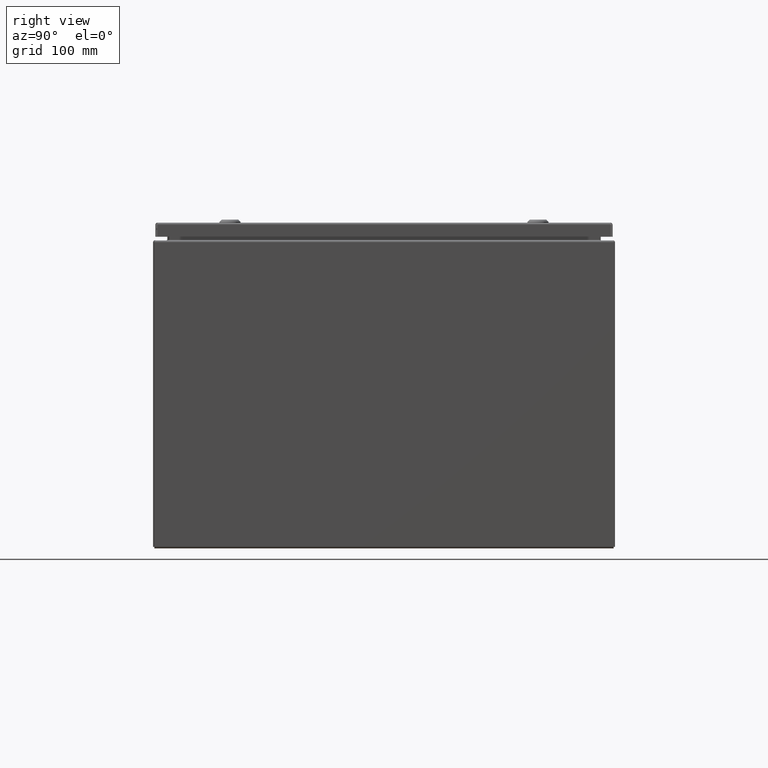
[diagram: clean part render]
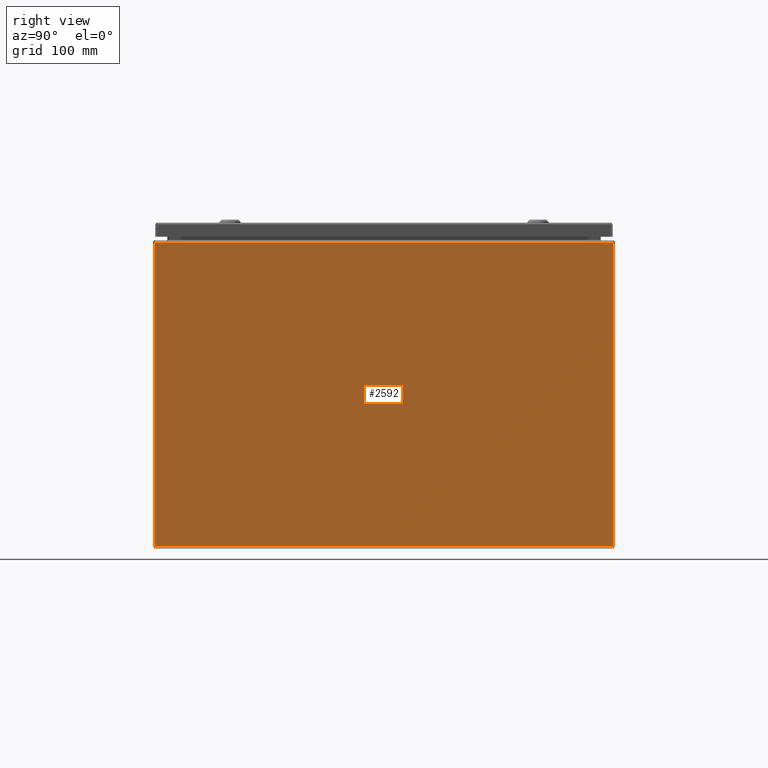
[diagram: same view with one face highlighted and labeled with its STEP entity id]
A machine part, right view. The second image highlights one B-rep face of the part: STEP entity #2592.
In plain terms, the highlighted planar face has unit normal (-1, -0, -0).
Its self-contained STEP definition (entity closure, byte-faithful):
#1709=CARTESIAN_POINT('',(-6.815742E-015,24.000000000000199,15.894749999999997));
#1710=VERTEX_POINT('',#1709);
#1857=CARTESIAN_POINT('',(23.851999999999997,24.000000000000213,15.894750000000004));
#1858=VERTEX_POINT('',#1857);
#1866=CARTESIAN_POINT('',(-7.105427E-015,24.000000000000203,15.894750000000002));
#1867=DIRECTION('',(1.0,0.0,0.0));
#1868=VECTOR('',#1867,23.852000000000004);
#1869=LINE('',#1866,#1868);
#1870=EDGE_CURVE('',#1710,#1858,#1869,.T.);
#2428=CARTESIAN_POINT('',(23.851999999999997,24.000000000000011,0.105249999999993));
#2429=VERTEX_POINT('',#2428);
#2436=CARTESIAN_POINT('',(23.851999999999997,24.000000000000011,0.105249999999993));
#2437=DIRECTION('',(0.0,0.0,1.0));
#2438=VECTOR('',#2437,15.789500000000009);
#2439=LINE('',#2436,#2438);
#2440=EDGE_CURVE('',#2429,#1858,#2439,.T.);
#2475=CARTESIAN_POINT('',(-4.047443E-015,23.999999999999996,0.105249999999996));
#2476=VERTEX_POINT('',#2475);
#2477=CARTESIAN_POINT('',(-4.047443E-015,24.000000000000203,15.894749999999997));
#2478=DIRECTION('',(0.0,0.0,-1.0));
#2479=VECTOR('',#2478,15.789500000000000);
#2480=LINE('',#2477,#2479);
#2481=EDGE_CURVE('',#1710,#2476,#2480,.T.);
#2498=CARTESIAN_POINT('',(23.851999999999997,24.000000000000011,0.105249999999998));
#2499=DIRECTION('',(-1.0,0.0,0.0));
#2500=VECTOR('',#2499,23.852000000000000);
#2501=LINE('',#2498,#2500);
#2502=EDGE_CURVE('',#2429,#2476,#2501,.T.);
#2581=CARTESIAN_POINT('',(11.925999999999993,23.999999999999403,-11.889732513612785));
#2582=DIRECTION('',(0.0,-1.0,0.0));
#2583=DIRECTION('',(1.0,0.0,0.0));
#2584=AXIS2_PLACEMENT_3D('',#2581,#2582,#2583);
#2585=PLANE('',#2584);
#2586=ORIENTED_EDGE('',*,*,#1870,.T.);
#2587=ORIENTED_EDGE('',*,*,#2440,.F.);
#2588=ORIENTED_EDGE('',*,*,#2502,.T.);
#2589=ORIENTED_EDGE('',*,*,#2481,.F.);
#2590=EDGE_LOOP('',(#2586,#2587,#2588,#2589));
#2591=FACE_OUTER_BOUND('',#2590,.T.);
#2592=ADVANCED_FACE('',(#2591),#2585,.F.);